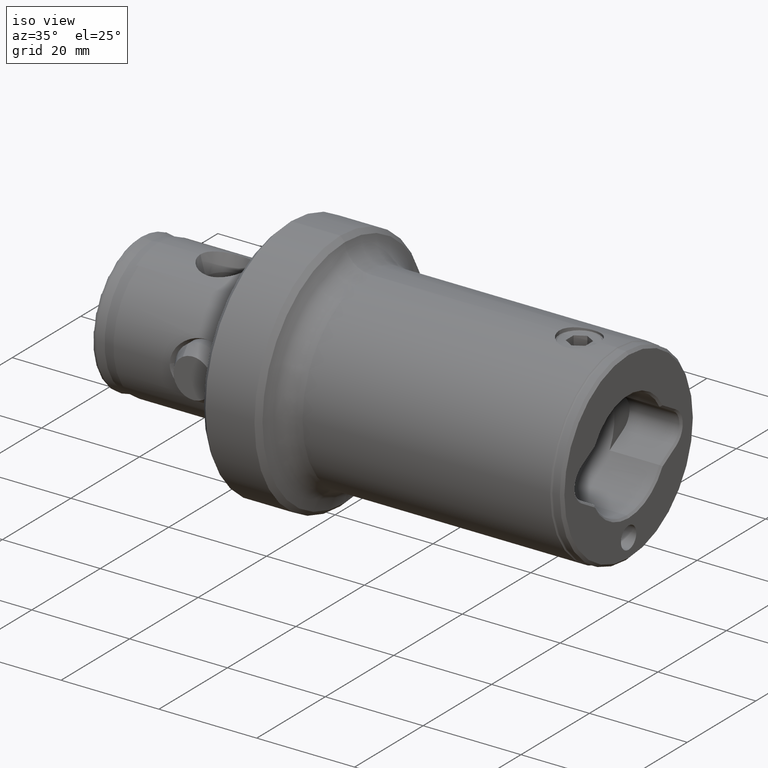
[diagram: clean part render]
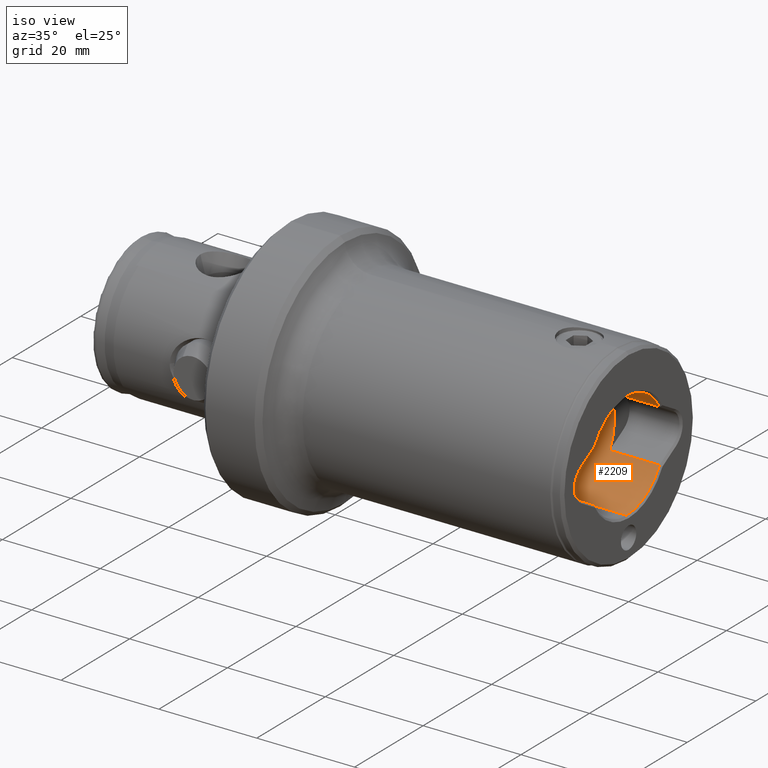
[diagram: same view with one face highlighted and labeled with its STEP entity id]
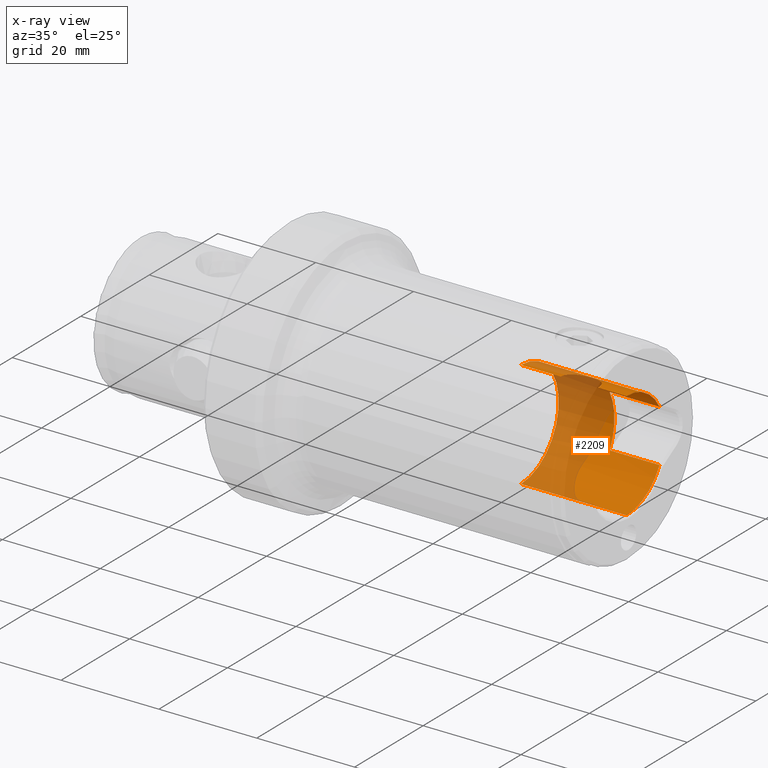
[diagram: x-ray of the same camera — body ghosted, the highlighted face saturated]
A machine part, iso view. The second image highlights one B-rep face of the part: STEP entity #2209.
The next image is the same camera in x-ray: the body ghosted, the highlighted face saturated — about 55% of this face is hidden behind the body in this view.
In plain terms, the highlighted cylindrical surface (partial cylindrical patch) has radius 11 mm, axis along (1, 0, 0).
Its self-contained STEP definition (entity closure, byte-faithful):
#26 = CIRCLE ( 'NONE', #1823, 10.99999999999999300 ) ;
#69 = CARTESIAN_POINT ( 'NONE',  ( 99.60000000000002300, 9.595993735232690700, 5.377444024197255400 ) ) ;
#122 = CARTESIAN_POINT ( 'NONE',  ( 99.99999999999997200, 0.0000000000000000000, -10.99999999999999300 ) ) ;
#179 = CIRCLE ( 'NONE', #5159, 10.99999999999999300 ) ;
#205 = AXIS2_PLACEMENT_3D ( 'NONE', #4270, #3053, #1792 ) ;
#227 = VECTOR ( 'NONE', #2526, 1000.000000000000000 ) ;
#243 = CARTESIAN_POINT ( 'NONE',  ( 91.85677234386216100, 3.172320462298374300, 10.53279777563760600 ) ) ;
#262 = CARTESIAN_POINT ( 'NONE',  ( 88.25791388804505300, 3.287841183889559400, 10.49760871199895700 ) ) ;
#322 = EDGE_CURVE ( 'NONE', #821, #647, #866, .T. ) ;
#579 = CARTESIAN_POINT ( 'NONE',  ( 99.60000000000002300, 0.0000000000000000000, 0.0000000000000000000 ) ) ;
#591 = ORIENTED_EDGE ( 'NONE', *, *, #3553, .T. ) ;
#626 = VECTOR ( 'NONE', #1024, 1000.000000000000000 ) ;
#647 = VERTEX_POINT ( 'NONE', #1715 ) ;
#659 = CARTESIAN_POINT ( 'NONE',  ( 91.52728708091093800, 3.335145757453166700, 10.48233273920298300 ) ) ;
#673 = CARTESIAN_POINT ( 'NONE',  ( 87.62876214278328700, 2.912506959842713800, 10.60829999423013700 ) ) ;
#682 = VERTEX_POINT ( 'NONE', #3806 ) ;
#819 = LINE ( 'NONE', #122, #3844 ) ;
#821 = VERTEX_POINT ( 'NONE', #2857 ) ;
#866 = LINE ( 'NONE', #4302, #626 ) ;
#889 = EDGE_CURVE ( 'NONE', #5332, #2697, #1668, .T. ) ;
#953 = VERTEX_POINT ( 'NONE', #3760 ) ;
#977 = EDGE_CURVE ( 'NONE', #1834, #3818, #3501, .T. ) ;
#980 = DIRECTION ( 'NONE',  ( 0.0000000000000000000, 0.0000000000000000000, -1.000000000000000000 ) ) ;
#1015 = CARTESIAN_POINT ( 'NONE',  ( 78.00000000000001400, 1.347111479062087600E-015, 10.99999999999999300 ) ) ;
#1024 = DIRECTION ( 'NONE',  ( -1.000000000000000000, 0.0000000000000000000, 0.0000000000000000000 ) ) ;
#1041 = CARTESIAN_POINT ( 'NONE',  ( 93.65154781160316600, 0.8314276042405593900, 10.96916530789592600 ) ) ;
#1057 = CARTESIAN_POINT ( 'NONE',  ( 90.44863304690858300, 3.666679617259406900, 10.37089487867725300 ) ) ;
#1076 = CARTESIAN_POINT ( 'NONE',  ( 87.08637845332252400, 2.422156683568864800, 10.73142714521068800 ) ) ;
#1107 = AXIS2_PLACEMENT_3D ( 'NONE', #3917, #1433, #4311 ) ;
#1146 = CARTESIAN_POINT ( 'NONE',  ( 99.99999999999997200, 1.347111479062087600E-015, 10.99999999999999300 ) ) ;
#1224 = CARTESIAN_POINT ( 'NONE',  ( 93.75000004780538600, 4.143002691484657500E-015, 10.99999999999999300 ) ) ;
#1433 = DIRECTION ( 'NONE',  ( -1.000000000000000000, -0.0000000000000000000, -0.0000000000000000000 ) ) ;
#1441 = CARTESIAN_POINT ( 'NONE',  ( 93.54687350940915300, 1.179771204046403000, 10.93716980927736800 ) ) ;
#1458 = CARTESIAN_POINT ( 'NONE',  ( 89.45690748056371400, 3.643032018232200000, 10.37934656703513900 ) ) ;
#1472 = CARTESIAN_POINT ( 'NONE',  ( 86.65792969556852700, 1.844134802595018800, 10.84617502104387800 ) ) ;
#1514 = ORIENTED_EDGE ( 'NONE', *, *, #2328, .F. ) ;
#1668 = LINE ( 'NONE', #3727, #2665 ) ;
#1715 = CARTESIAN_POINT ( 'NONE',  ( 89.39999999987952600, 9.595993735232704900, -5.377444024197246500 ) ) ;
#1717 = DIRECTION ( 'NONE',  ( 1.000000000000000000, 0.0000000000000000000, 0.0000000000000000000 ) ) ;
#1792 = DIRECTION ( 'NONE',  ( 0.0000000000000000000, 0.0000000000000000000, -1.000000000000000000 ) ) ;
#1823 = AXIS2_PLACEMENT_3D ( 'NONE', #2277, #5167, #2706 ) ;
#1824 = ORIENTED_EDGE ( 'NONE', *, *, #322, .T. ) ;
#1834 = VERTEX_POINT ( 'NONE', #4637 ) ;
#1845 = ORIENTED_EDGE ( 'NONE', *, *, #889, .F. ) ;
#1848 = CARTESIAN_POINT ( 'NONE',  ( 93.25953709606622500, 1.860306049674151300, 10.85110549554616100 ) ) ;
#1864 = CARTESIAN_POINT ( 'NONE',  ( 88.97089554027229500, 3.542243145470886000, 10.41412163496696800 ) ) ;
#1885 = CARTESIAN_POINT ( 'NONE',  ( 86.24807558361169400, 0.9527207241287258800, 10.96823565393222400 ) ) ;
#1944 = EDGE_CURVE ( 'NONE', #5016, #682, #4258, .T. ) ;
#2034 = CARTESIAN_POINT ( 'NONE',  ( 86.14999984957044900, 5.413421843006578900E-012, 11.00000001331912900 ) ) ;
#2100 = CARTESIAN_POINT ( 'NONE',  ( 99.99999999999997200, 9.595993735232690700, 5.377444024197255400 ) ) ;
#2209 = ADVANCED_FACE ( 'NONE', ( #4076 ), #5052, .F. ) ;
#2263 = CARTESIAN_POINT ( 'NONE',  ( 92.45940435381413600, 2.764247561175048300, 10.64845228160447700 ) ) ;
#2276 = LINE ( 'NONE', #1146, #3386 ) ;
#2277 = CARTESIAN_POINT ( 'NONE',  ( 89.39999999987952600, 0.0000000000000000000, 0.0000000000000000000 ) ) ;
#2282 = CARTESIAN_POINT ( 'NONE',  ( 88.73035228084683000, 3.469410514938921600, 10.43856659102446500 ) ) ;
#2300 = CARTESIAN_POINT ( 'NONE',  ( 86.14999984957044900, 5.413421843006578900E-012, 11.00000001331912900 ) ) ;
#2328 = EDGE_CURVE ( 'NONE', #1834, #647, #26, .T. ) ;
#2387 = EDGE_LOOP ( 'NONE', ( #5060, #3835, #3645, #4602, #1824, #1514, #2746, #5205, #1845, #591 ) ) ;
#2475 = CARTESIAN_POINT ( 'NONE',  ( 99.60000000000002300, 1.347111479062087600E-015, 10.99999999999999300 ) ) ;
#2526 = DIRECTION ( 'NONE',  ( 1.000000000000000000, -0.0000000000000000000, -0.0000000000000000000 ) ) ;
#2665 = VECTOR ( 'NONE', #4542, 1000.000000000000000 ) ;
#2676 = CIRCLE ( 'NONE', #3286, 10.99999999999999300 ) ;
#2678 = CARTESIAN_POINT ( 'NONE',  ( 93.75000004780538600, 4.143002691484657500E-015, 10.99999999999999300 ) ) ;
#2696 = CARTESIAN_POINT ( 'NONE',  ( 91.96253794962069600, 3.111482052723765900, 10.55098777617069500 ) ) ;
#2697 = VERTEX_POINT ( 'NONE', #2475 ) ;
#2706 = DIRECTION ( 'NONE',  ( 0.0000000000000000000, -1.776356839400250500E-015, -1.000000000000000000 ) ) ;
#2709 = CARTESIAN_POINT ( 'NONE',  ( 88.54984566693298100, 3.404920008354110500, 10.45978609995226100 ) ) ;
#2731 = B_SPLINE_CURVE_WITH_KNOTS ( 'NONE', 3,
 ( #2678, #5143, #3507, #1041, #3925, #1441, #4318, #1848, #4740, #2263, #5157, #2696, #243, #3123, #659, #3527, #1057, #3939, #1458, #4337, #1864, #4761, #2282, #5174, #2709, #262, #3141, #673, #3546, #1076, #3953, #1472, #4360, #1885, #4774, #2300 ),
 .UNSPECIFIED., .F., .F.,
 ( 4, 2, 2, 2, 2, 2, 2, 2, 2, 2, 2, 2, 2, 2, 2, 2, 2, 4 ),
 ( 0.0000000000000000000, 0.03125195161140163100, 0.04687792741710246300, 0.06250390322280330300, 0.1250078064456066300, 0.1562597580570089200, 0.1718857338627100800, 0.1875117096684112400, 0.2500156128912142700, 0.2812675645026167000, 0.2968935403083178800, 0.3047065282111684500, 0.3125195161140190100, 0.3437714677254183300, 0.3750234193368176500, 0.4062753709482169200, 0.4375273225596162400, 0.5000312257824154300 ),
 .UNSPECIFIED. ) ;
#2746 = ORIENTED_EDGE ( 'NONE', *, *, #977, .T. ) ;
#2857 = CARTESIAN_POINT ( 'NONE',  ( 99.60000000000002300, 9.595993735232690700, -5.377444024197248300 ) ) ;
#3053 = DIRECTION ( 'NONE',  ( 1.000000000000000000, -0.0000000000000000000, -0.0000000000000000000 ) ) ;
#3123 = CARTESIAN_POINT ( 'NONE',  ( 91.63813854910095800, 3.284556902632242100, 10.49833949019388700 ) ) ;
#3141 = CARTESIAN_POINT ( 'NONE',  ( 88.03866536974855700, 3.175501933182173000, 10.53256440906352700 ) ) ;
#3286 = AXIS2_PLACEMENT_3D ( 'NONE', #579, #3443, #980 ) ;
#3306 = VERTEX_POINT ( 'NONE', #2034 ) ;
#3386 = VECTOR ( 'NONE', #3612, 1000.000000000000000 ) ;
#3443 = DIRECTION ( 'NONE',  ( 1.000000000000000000, 0.0000000000000000000, 0.0000000000000000000 ) ) ;
#3501 = LINE ( 'NONE', #2100, #227 ) ;
#3507 = CARTESIAN_POINT ( 'NONE',  ( 93.72542187388509700, 0.4789942628061303900, 10.99208816141692900 ) ) ;
#3527 = CARTESIAN_POINT ( 'NONE',  ( 90.93508332990232600, 3.572882815962676000, 10.40550135479279700 ) ) ;
#3546 = CARTESIAN_POINT ( 'NONE',  ( 87.43712521574242700, 2.760894480211645100, 10.64931139754392900 ) ) ;
#3553 = EDGE_CURVE ( 'NONE', #5332, #3306, #2731, .T. ) ;
#3612 = DIRECTION ( 'NONE',  ( 1.000000000000000000, -0.0000000000000000000, -0.0000000000000000000 ) ) ;
#3645 = ORIENTED_EDGE ( 'NONE', *, *, #4200, .T. ) ;
#3727 = CARTESIAN_POINT ( 'NONE',  ( 99.99999999999997200, 1.347111479062087600E-015, 10.99999999999999300 ) ) ;
#3760 = CARTESIAN_POINT ( 'NONE',  ( 99.60000000000002300, 0.0000000000000000000, -10.99999999999999300 ) ) ;
#3806 = CARTESIAN_POINT ( 'NONE',  ( 78.00000000000001400, 0.0000000000000000000, -10.99999999999999300 ) ) ;
#3818 = VERTEX_POINT ( 'NONE', #69 ) ;
#3835 = ORIENTED_EDGE ( 'NONE', *, *, #1944, .T. ) ;
#3844 = VECTOR ( 'NONE', #4614, 1000.000000000000000 ) ;
#3917 = CARTESIAN_POINT ( 'NONE',  ( 78.00000000000001400, 0.0000000000000000000, 0.0000000000000000000 ) ) ;
#3925 = CARTESIAN_POINT ( 'NONE',  ( 93.62076307619342700, 0.9481091259784074600, 10.95968214028590300 ) ) ;
#3939 = CARTESIAN_POINT ( 'NONE',  ( 89.70286870357369900, 3.666659623077988000, 10.37090194768706700 ) ) ;
#3953 = CARTESIAN_POINT ( 'NONE',  ( 86.93053934928775600, 2.238880685593275500, 10.77161821793437500 ) ) ;
#4076 = FACE_OUTER_BOUND ( 'NONE', #2387, .T. ) ;
#4191 = CARTESIAN_POINT ( 'NONE',  ( 99.60000000000002300, 0.0000000000000000000, 0.0000000000000000000 ) ) ;
#4200 = EDGE_CURVE ( 'NONE', #682, #953, #819, .T. ) ;
#4258 = CIRCLE ( 'NONE', #1107, 10.99999999999999300 ) ;
#4270 = CARTESIAN_POINT ( 'NONE',  ( 99.99999999999997200, 0.0000000000000000000, 0.0000000000000000000 ) ) ;
#4302 = CARTESIAN_POINT ( 'NONE',  ( 99.99999999999997200, 9.595993735232690700, -5.377444024197248300 ) ) ;
#4311 = DIRECTION ( 'NONE',  ( 0.0000000000000000000, 0.0000000000000000000, -1.000000000000000000 ) ) ;
#4318 = CARTESIAN_POINT ( 'NONE',  ( 93.50324596403167700, 1.295962093693658900, 10.92398434953243000 ) ) ;
#4337 = CARTESIAN_POINT ( 'NONE',  ( 89.09190598320110200, 3.571905060239996200, 10.40394750091301500 ) ) ;
#4360 = CARTESIAN_POINT ( 'NONE',  ( 86.54184380058843800, 1.634249403342132200, 10.88033530835650700 ) ) ;
#4461 = EDGE_CURVE ( 'NONE', #5016, #3306, #2276, .T. ) ;
#4542 = DIRECTION ( 'NONE',  ( 1.000000000000000000, -0.0000000000000000000, -0.0000000000000000000 ) ) ;
#4602 = ORIENTED_EDGE ( 'NONE', *, *, #4634, .T. ) ;
#4603 = DIRECTION ( 'NONE',  ( 0.0000000000000000000, 0.0000000000000000000, -1.000000000000000000 ) ) ;
#4614 = DIRECTION ( 'NONE',  ( 1.000000000000000000, -0.0000000000000000000, -0.0000000000000000000 ) ) ;
#4634 = EDGE_CURVE ( 'NONE', #953, #821, #179, .T. ) ;
#4637 = CARTESIAN_POINT ( 'NONE',  ( 89.39999999987952600, 9.595993735232690700, 5.377444024197254500 ) ) ;
#4740 = CARTESIAN_POINT ( 'NONE',  ( 92.98745923970152200, 2.254260459917366800, 10.77221945891991500 ) ) ;
#4761 = CARTESIAN_POINT ( 'NONE',  ( 88.79036496016721000, 3.488744598774229800, 10.43211460380416400 ) ) ;
#4774 = CARTESIAN_POINT ( 'NONE',  ( 86.15010116355574600, 0.4819863148015236000, 10.99999999999962700 ) ) ;
#4931 = EDGE_CURVE ( 'NONE', #3818, #2697, #2676, .T. ) ;
#5016 = VERTEX_POINT ( 'NONE', #1015 ) ;
#5052 = CYLINDRICAL_SURFACE ( 'NONE', #205, 10.99999999999999300 ) ;
#5060 = ORIENTED_EDGE ( 'NONE', *, *, #4461, .F. ) ;
#5143 = CARTESIAN_POINT ( 'NONE',  ( 93.75003105681004500, 0.2408493435153002700, 10.99999999999999300 ) ) ;
#5157 = CARTESIAN_POINT ( 'NONE',  ( 92.26918089202985100, 2.914620553719737400, 10.60771613011665900 ) ) ;
#5159 = AXIS2_PLACEMENT_3D ( 'NONE', #4191, #1717, #4603 ) ;
#5167 = DIRECTION ( 'NONE',  ( -1.000000000000000000, -0.0000000000000000000, -0.0000000000000000000 ) ) ;
#5174 = CARTESIAN_POINT ( 'NONE',  ( 88.61065528363550900, 3.427723944512474300, 10.45232942250849500 ) ) ;
#5205 = ORIENTED_EDGE ( 'NONE', *, *, #4931, .T. ) ;
#5332 = VERTEX_POINT ( 'NONE', #1224 ) ;